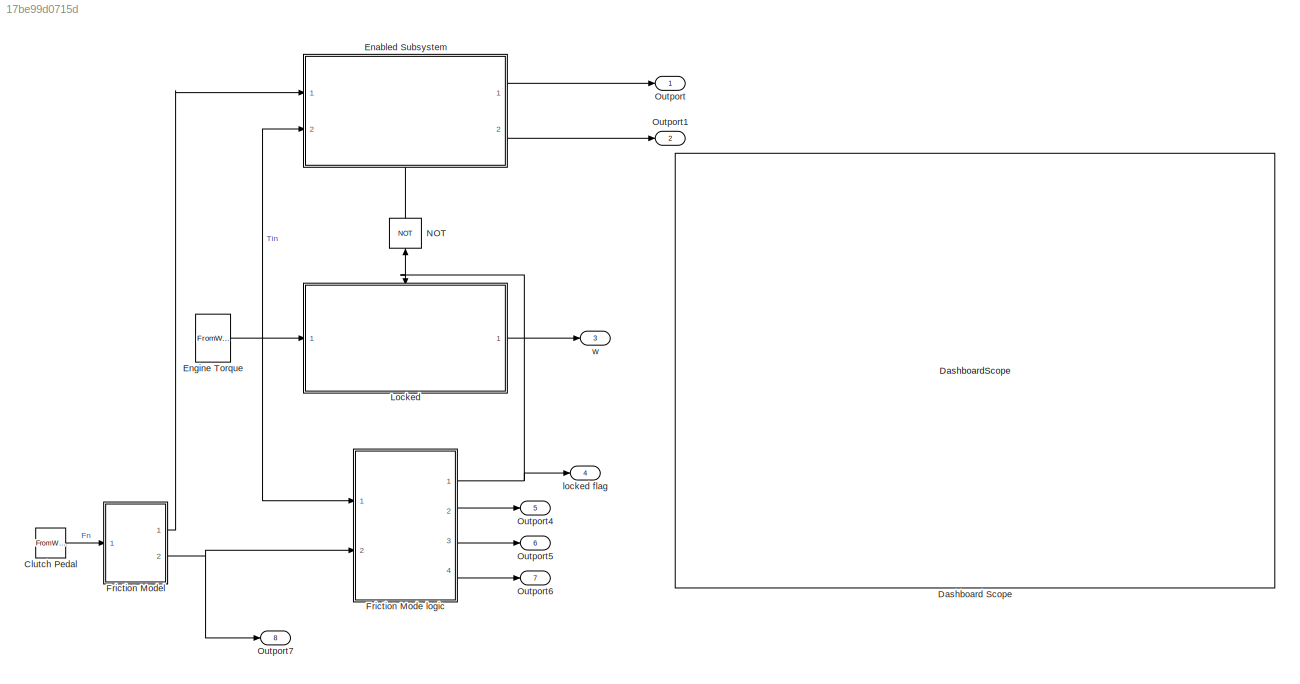
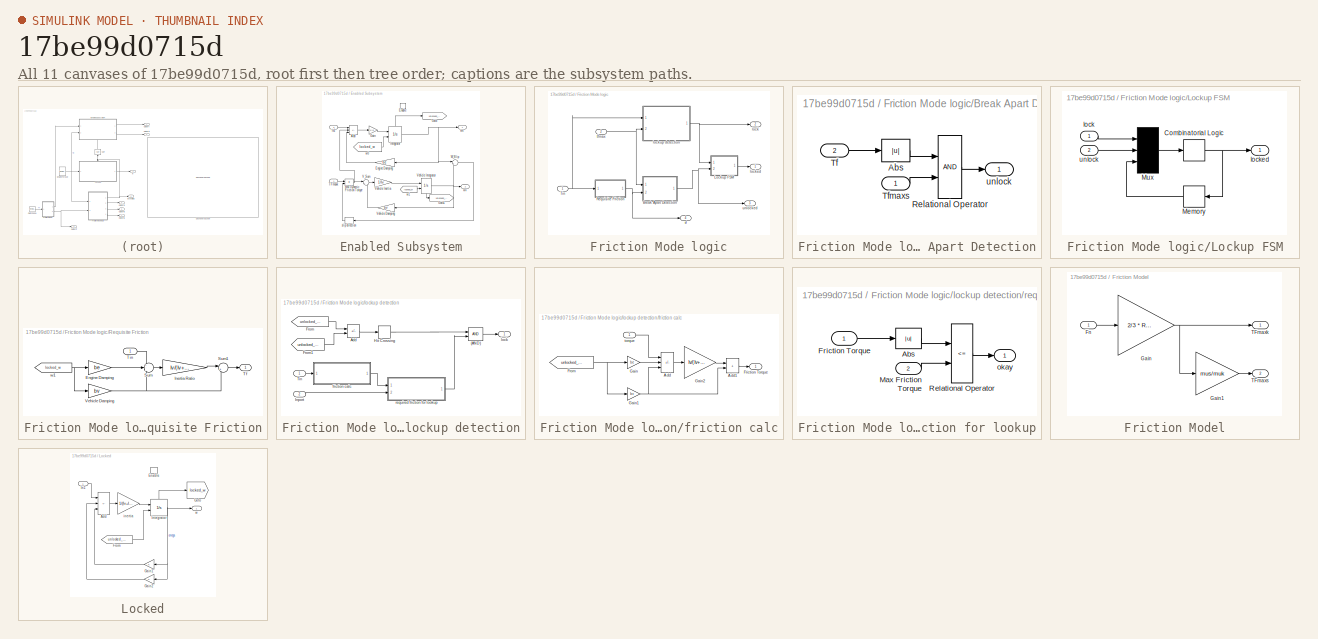
[diagram: thumbnail index - all 11 canvases of the model, root first then tree order]
MODEL slx_17be99d0715d
KIND model
CONFIG AbsTol = auto
CONFIG EnableMultiTasking = off
CONFIG FixedStep = auto
CONFIG MaxStep = auto
CONFIG MinStep = auto
CONFIG RelTol = 1e-3
CONFIG SampleTimeConstraint = Unconstrained
CONFIG Solver = VariableStepAuto
CONFIG SolverName = VariableStepAuto
CONFIG StartTime = 0.0
CONFIG StopTime = 10.0
WORKSPACE source: mxarray member
WORKSPACE Fn = [0 1 2 3 4 5 6 7 8 9 10 0 ... (22 elements, 11x2)]
WORKSPACE Ie = 1
WORKSPACE Iv = 5
WORKSPACE R = 1
WORKSPACE Tin = [1 2 3 4 5 6 7 8 9 10 2 2 ... (20 elements, 10x2)]
WORKSPACE be = 2
WORKSPACE bv = 1
WORKSPACE f1 = [1 6 11 16 21 26 31 36 41 46 51]
WORKSPACE muk = 1
WORKSPACE mus = 1.5
BLOCK [FromWorkspace] Clutch Pedal
  VariableName = Fn
  ZeroCross = off
BLOCK [DashboardScope] Dashboard Scope
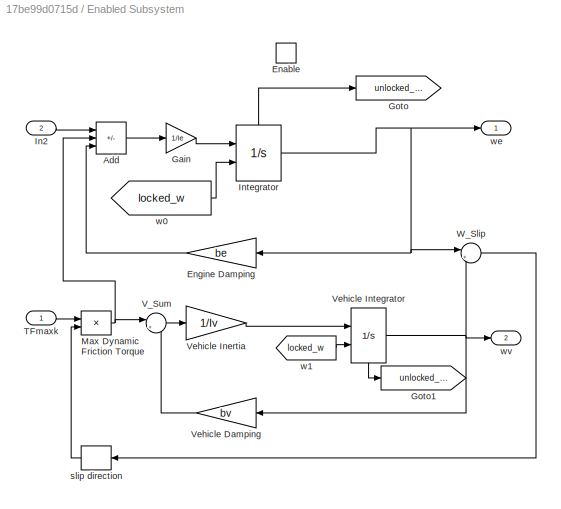
BLOCK [SubSystem] Enabled Subsystem
  NameLocation = top
  Ports = [2, 2, 1]
  RequestExecContextInheritance = off
  TreatAsAtomicUnit = on
BLOCK [Sum] Enabled Subsystem/Add
  IconShape = rectangular
  Inputs = +--
  Ports = [3, 1]
BLOCK [EnablePort] Enabled Subsystem/Enable
  Ports = []
  StatesWhenEnabling = reset
BLOCK [Gain] Enabled Subsystem/Engine Damping
  Gain = be
  OutDataTypeStr = Inherit: Same as input
  ParamDataTypeStr = Inherit: Same as input
  SaturateOnIntegerOverflow = on
BLOCK [Gain] Enabled Subsystem/Gain
  Gain = 1/Ie
BLOCK [Goto] Enabled Subsystem/Goto
  GotoTag = unlocked_we
  TagVisibility = global
BLOCK [Goto] Enabled Subsystem/Goto1
  GotoTag = unlocked_wv
  TagVisibility = global
BLOCK [Inport] Enabled Subsystem/In2
  Port = 2
BLOCK [Integrator] Enabled Subsystem/Integrator
  InitialConditionSource = external
  Ports = [2, 1, 0, 0, 1]
  ShowStatePort = on
BLOCK [Product] Enabled Subsystem/Max Dynamic Friction Torque
  InputSameDT = on
  OutDataTypeStr = Inherit: Same as first input
  Ports = [2, 1]
  RndMeth = Zero
  SaturateOnIntegerOverflow = on
BLOCK [Inport] Enabled Subsystem/TFmaxk
BLOCK [Sum] Enabled Subsystem/V_Sum
  InputSameDT = on
  Inputs = |+-
  NameLocation = top
  OutDataTypeStr = Inherit: Same as first input
  Ports = [2, 1]
  SaturateOnIntegerOverflow = on
BLOCK [Gain] Enabled Subsystem/Vehicle Damping
  Gain = bv
  OutDataTypeStr = Inherit: Same as input
  ParamDataTypeStr = Inherit: Same as input
  SaturateOnIntegerOverflow = on
BLOCK [Gain] Enabled Subsystem/Vehicle Inertia
  Gain = 1/Iv
  OutDataTypeStr = Inherit: Same as input
  ParamDataTypeStr = Inherit: Same as input
  SaturateOnIntegerOverflow = on
BLOCK [Integrator] Enabled Subsystem/Vehicle Integrator
  InitialConditionSource = external
  NameLocation = top
  Ports = [2, 1, 0, 0, 1]
  ShowStatePort = on
BLOCK [Sum] Enabled Subsystem/W_Slip
  InputSameDT = on
  Inputs = |+-
  NameLocation = top
  OutDataTypeStr = Inherit: Same as first input
  Ports = [2, 1]
  SaturateOnIntegerOverflow = on
BLOCK [Signum] Enabled Subsystem/slip direction
BLOCK [From] Enabled Subsystem/w0
  GotoTag = locked_w
  IconDisplay = Tag and signal name
  TagVisibility = global
BLOCK [From] Enabled Subsystem/w1
  GotoTag = locked_w
  TagVisibility = global
BLOCK [Outport] Enabled Subsystem/we
BLOCK [Outport] Enabled Subsystem/wv
  Port = 2
BLOCK [FromWorkspace] Engine Torque
  VariableName = Tin
  ZeroCross = off
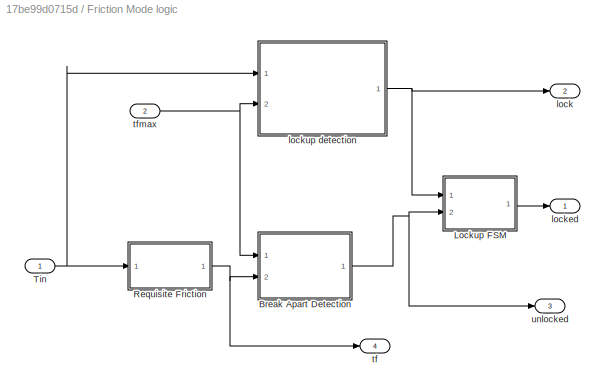
BLOCK [SubSystem] Friction Mode logic
  Ports = [2, 4]
  RequestExecContextInheritance = off
BLOCK [SubSystem] Friction Mode logic/Break Apart Detection
  Ports = [2, 1]
  RequestExecContextInheritance = off
BLOCK [Abs] Friction Mode logic/Break Apart Detection/Abs
BLOCK [RelationalOperator] Friction Mode logic/Break Apart Detection/Relational Operator
  OutDataTypeStr = boolean
  Ports = [2, 1]
BLOCK [Inport] Friction Mode logic/Break Apart Detection/Tf
  Port = 2
BLOCK [Inport] Friction Mode logic/Break Apart Detection/Tfmaxs
BLOCK [Outport] Friction Mode logic/Break Apart Detection/unlock
  InitialOutput = 0
  VectorParamsAs1DForOutWhenUnconnected = off
BLOCK [SubSystem] Friction Mode logic/Lockup FSM
  Ports = [2, 1]
  RequestExecContextInheritance = off
BLOCK [CombinatorialLogic] Friction Mode logic/Lockup FSM/Combinatorial Logic
  TruthTable = [0;1;0;0;1;1;1;0]
BLOCK [Memory] Friction Mode logic/Lockup FSM/Memory
BLOCK [Mux] Friction Mode logic/Lockup FSM/Mux
  Inputs = 3
  Ports = [3, 1]
BLOCK [Inport] Friction Mode logic/Lockup FSM/lock
  NameLocation = top
BLOCK [Outport] Friction Mode logic/Lockup FSM/locked
  InitialOutput = 0
  VectorParamsAs1DForOutWhenUnconnected = off
BLOCK [Inport] Friction Mode logic/Lockup FSM/unlock
  Port = 2
BLOCK [SubSystem] Friction Mode logic/Requisite Friction
  Ports = [1, 1]
  RequestExecContextInheritance = off
BLOCK [Gain] Friction Mode logic/Requisite Friction/Engine Damping
  Gain = be
  NameLocation = top
  OutDataTypeStr = Inherit: Same as input
  ParamDataTypeStr = Inherit: Same as input
  SaturateOnIntegerOverflow = on
BLOCK [Gain] Friction Mode logic/Requisite Friction/Inertia Ratio
  Gain = Iv/(Iv+Ie)
  OutDataTypeStr = Inherit: Same as input
  ParamDataTypeStr = Inherit: Same as input
  SaturateOnIntegerOverflow = on
BLOCK [Sum] Friction Mode logic/Requisite Friction/Sum
  InputSameDT = on
  Inputs = +--
  OutDataTypeStr = Inherit: Same as first input
  Ports = [3, 1]
  SaturateOnIntegerOverflow = on
BLOCK [Sum] Friction Mode logic/Requisite Friction/Sum1
  InputSameDT = on
  Inputs = |++
  OutDataTypeStr = Inherit: Same as first input
  Ports = [2, 1]
  SaturateOnIntegerOverflow = on
BLOCK [Outport] Friction Mode logic/Requisite Friction/Tf
  InitialOutput = 0
  VectorParamsAs1DForOutWhenUnconnected = off
BLOCK [Inport] Friction Mode logic/Requisite Friction/Tin
BLOCK [Gain] Friction Mode logic/Requisite Friction/Vehicle Damping
  Gain = bv
  OutDataTypeStr = Inherit: Same as input
  ParamDataTypeStr = Inherit: Same as input
  SaturateOnIntegerOverflow = on
BLOCK [From] Friction Mode logic/Requisite Friction/w1
  GotoTag = locked_w
  NameLocation = top
  TagVisibility = global
BLOCK [Inport] Friction Mode logic/Tin
BLOCK [Outport] Friction Mode logic/lock
  Port = 2
BLOCK [Outport] Friction Mode logic/locked
BLOCK [SubSystem] Friction Mode logic/lockup detection
  Ports = [2, 1]
  RequestExecContextInheritance = off
BLOCK [Logic] Friction Mode logic/lockup detection/(AND)
  AllPortsSameDT = off
  IconShape = distinctive
  OutDataTypeStr = boolean
  Ports = [2, 1]
BLOCK [Sum] Friction Mode logic/lockup detection/Add
  IconShape = rectangular
  Inputs = +-
  Ports = [2, 1]
BLOCK [From] Friction Mode logic/lockup detection/From
  GotoTag = unlocked_we
  TagVisibility = global
BLOCK [From] Friction Mode logic/lockup detection/From1
  GotoTag = unlocked_we
  IconDisplay = Signal name
  TagVisibility = global
BLOCK [HitCross] Friction Mode logic/lockup detection/Hit Crossing
  Ports = [1, 1]
BLOCK [Inport] Friction Mode logic/lockup detection/Inport
  Port = 2
BLOCK [Inport] Friction Mode logic/lockup detection/Tin
BLOCK [SubSystem] Friction Mode logic/lockup detection/friction calc
  Ports = [1, 1]
  RequestExecContextInheritance = off
BLOCK [Sum] Friction Mode logic/lockup detection/friction calc/Add
  IconShape = rectangular
  Inputs = +--
  Ports = [3, 1]
BLOCK [Sum] Friction Mode logic/lockup detection/friction calc/Add1
  IconShape = rectangular
  Ports = [2, 1]
BLOCK [Outport] Friction Mode logic/lockup detection/friction calc/Friction Torque
BLOCK [From] Friction Mode logic/lockup detection/friction calc/From
  GotoTag = unlocked_wv
  IconDisplay = Signal name
  TagVisibility = global
BLOCK [Gain] Friction Mode logic/lockup detection/friction calc/Gain
  Gain = be
BLOCK [Gain] Friction Mode logic/lockup detection/friction calc/Gain1
  Gain = bv
BLOCK [Gain] Friction Mode logic/lockup detection/friction calc/Gain2
  Gain = Iv/(Iv+Ie)
BLOCK [Inport] Friction Mode logic/lockup detection/friction calc/torque
BLOCK [Outport] Friction Mode logic/lockup detection/lock
BLOCK [SubSystem] Friction Mode logic/lockup detection/required friction for lookup
  Ports = [2, 1]
  RequestExecContextInheritance = off
BLOCK [Abs] Friction Mode logic/lockup detection/required friction for lookup/Abs
BLOCK [Inport] Friction Mode logic/lockup detection/required friction for lookup/Friction Torque
BLOCK [Inport] Friction Mode logic/lockup detection/required friction for lookup/Max Friction Torque
  Port = 2
BLOCK [RelationalOperator] Friction Mode logic/lockup detection/required friction for lookup/Relational Operator
  Operator = <=
  OutDataTypeStr = boolean
  Ports = [2, 1]
BLOCK [Outport] Friction Mode logic/lockup detection/required friction for lookup/okay
  InitialOutput = 0
  VectorParamsAs1DForOutWhenUnconnected = off
BLOCK [Outport] Friction Mode logic/tf
  Port = 4
BLOCK [Inport] Friction Mode logic/tfmax
  Port = 2
BLOCK [Outport] Friction Mode logic/unlocked
  Port = 3
BLOCK [SubSystem] Friction Model
  Ports = [1, 2]
  RequestExecContextInheritance = off
BLOCK [Inport] Friction Model/Fn
BLOCK [Gain] Friction Model/Gain
  Gain = 2/3 * R * muk
BLOCK [Gain] Friction Model/Gain1
  Gain = mus/muk
BLOCK [Outport] Friction Model/TFmaxk
BLOCK [Outport] Friction Model/TFmaxs
  Port = 2
BLOCK [SubSystem] Locked
  Ports = [1, 1, 1]
  RequestExecContextInheritance = off
  TreatAsAtomicUnit = on
BLOCK [Sum] Locked/Add
  IconShape = rectangular
  Inputs = +--
  Ports = [3, 1]
BLOCK [EnablePort] Locked/Enable
  Ports = []
  StatesWhenEnabling = reset
BLOCK [From] Locked/From
  GotoTag = unlocked_we
  IconDisplay = Signal name
  TagVisibility = global
BLOCK [Gain] Locked/Gain1
BLOCK [Gain] Locked/Gain2
BLOCK [Goto] Locked/Goto
  GotoTag = locked_w
  IconDisplay = Tag and signal name
  TagVisibility = global
BLOCK [Inport] Locked/In1
BLOCK [Integrator] Locked/Integrator
  InitialConditionSource = external
  Ports = [2, 1, 0, 0, 1]
  ShowStatePort = on
BLOCK [Gain] Locked/inertia
  Gain = 1/(Iv+Ie)
BLOCK [Outport] Locked/w
BLOCK [Logic] NOT
  AllPortsSameDT = off
  IconShape = distinctive
  NameLocation = right
  Operator = NOT
  OutDataTypeStr = boolean
  Ports = [1, 1]
BLOCK [Outport] Outport
BLOCK [Outport] Outport1
  Port = 2
BLOCK [Outport] Outport4
  Port = 5
  SignalName = lookup flag
BLOCK [Outport] Outport5
  Port = 6
  SignalName = break apart flag
BLOCK [Outport] Outport6
  Port = 7
BLOCK [Outport] Outport7
  Port = 8
BLOCK [Outport] locked flag
  Port = 4
BLOCK [Outport] w
  Port = 3
LINE Clutch Pedal:1 -> Friction Model:1
LINE Enabled Subsystem/Add:1 -> Enabled Subsystem/Gain:1
LINE Enabled Subsystem/Engine Damping:1 -> Enabled Subsystem/Add:3
LINE Enabled Subsystem/Gain:1 -> Enabled Subsystem/Integrator:1
LINE Enabled Subsystem/In2:1 -> Enabled Subsystem/Add:1
NET Enabled Subsystem/Integrator:1 -> Enabled Subsystem/Engine Damping:1, Enabled Subsystem/W_Slip:1, Enabled Subsystem/we:1
LINE Enabled Subsystem/Integrator:state -> Enabled Subsystem/Goto:1
NET Enabled Subsystem/Max Dynamic Friction Torque:1 -> Enabled Subsystem/Add:2, Enabled Subsystem/V_Sum:1
LINE Enabled Subsystem/TFmaxk:1 -> Enabled Subsystem/Max Dynamic Friction Torque:1
LINE Enabled Subsystem/V_Sum:1 -> Enabled Subsystem/Vehicle Inertia:1
LINE Enabled Subsystem/Vehicle Damping:1 -> Enabled Subsystem/V_Sum:2
LINE Enabled Subsystem/Vehicle Inertia:1 -> Enabled Subsystem/Vehicle Integrator:1
NET Enabled Subsystem/Vehicle Integrator:1 -> Enabled Subsystem/Vehicle Damping:1, Enabled Subsystem/W_Slip:2, Enabled Subsystem/wv:1
LINE Enabled Subsystem/Vehicle Integrator:state -> Enabled Subsystem/Goto1:1
LINE Enabled Subsystem/W_Slip:1 -> Enabled Subsystem/slip direction:1
LINE Enabled Subsystem/slip direction:1 -> Enabled Subsystem/Max Dynamic Friction Torque:2
LINE Enabled Subsystem/w0:1 -> Enabled Subsystem/Integrator:2
LINE Enabled Subsystem/w1:1 -> Enabled Subsystem/Vehicle Integrator:2
LINE Enabled Subsystem:1 -> Outport:1
LINE Enabled Subsystem:2 -> Outport1:1
NET Engine Torque:1 -> Enabled Subsystem:2, Friction Mode logic:1, Locked:1
LINE Friction Mode logic/Break Apart Detection/Abs:1 -> Friction Mode logic/Break Apart Detection/Relational Operator:1
LINE Friction Mode logic/Break Apart Detection/Relational Operator:1 -> Friction Mode logic/Break Apart Detection/unlock:1
LINE Friction Mode logic/Break Apart Detection/Tf:1 -> Friction Mode logic/Break Apart Detection/Abs:1
LINE Friction Mode logic/Break Apart Detection/Tfmaxs:1 -> Friction Mode logic/Break Apart Detection/Relational Operator:2
NET Friction Mode logic/Break Apart Detection:1 -> Friction Mode logic/Lockup FSM:2, Friction Mode logic/unlocked:1
NET Friction Mode logic/Lockup FSM/Combinatorial Logic:1 -> Friction Mode logic/Lockup FSM/Memory:1, Friction Mode logic/Lockup FSM/locked:1
LINE Friction Mode logic/Lockup FSM/Memory:1 -> Friction Mode logic/Lockup FSM/Mux:3
LINE Friction Mode logic/Lockup FSM/Mux:1 -> Friction Mode logic/Lockup FSM/Combinatorial Logic:1
LINE Friction Mode logic/Lockup FSM/lock:1 -> Friction Mode logic/Lockup FSM/Mux:1
LINE Friction Mode logic/Lockup FSM/unlock:1 -> Friction Mode logic/Lockup FSM/Mux:2
LINE Friction Mode logic/Lockup FSM:1 -> Friction Mode logic/locked:1
LINE Friction Mode logic/Requisite Friction/Engine Damping:1 -> Friction Mode logic/Requisite Friction/Sum:2
LINE Friction Mode logic/Requisite Friction/Inertia Ratio:1 -> Friction Mode logic/Requisite Friction/Sum1:1
LINE Friction Mode logic/Requisite Friction/Sum1:1 -> Friction Mode logic/Requisite Friction/Tf:1
LINE Friction Mode logic/Requisite Friction/Sum:1 -> Friction Mode logic/Requisite Friction/Inertia Ratio:1
LINE Friction Mode logic/Requisite Friction/Tin:1 -> Friction Mode logic/Requisite Friction/Sum:1
NET Friction Mode logic/Requisite Friction/Vehicle Damping:1 -> Friction Mode logic/Requisite Friction/Sum1:2, Friction Mode logic/Requisite Friction/Sum:3
NET Friction Mode logic/Requisite Friction/w1:1 -> Friction Mode logic/Requisite Friction/Engine Damping:1, Friction Mode logic/Requisite Friction/Vehicle Damping:1
NET Friction Mode logic/Requisite Friction:1 -> Friction Mode logic/Break Apart Detection:2, Friction Mode logic/tf:1
NET Friction Mode logic/Tin:1 -> Friction Mode logic/Requisite Friction:1, Friction Mode logic/lockup detection:1
LINE Friction Mode logic/lockup detection/(AND):1 -> Friction Mode logic/lockup detection/lock:1
LINE Friction Mode logic/lockup detection/Add:1 -> Friction Mode logic/lockup detection/Hit Crossing:1
LINE Friction Mode logic/lockup detection/From1:1 -> Friction Mode logic/lockup detection/Add:2
LINE Friction Mode logic/lockup detection/From:1 -> Friction Mode logic/lockup detection/Add:1
LINE Friction Mode logic/lockup detection/Hit Crossing:1 -> Friction Mode logic/lockup detection/(AND):1
LINE Friction Mode logic/lockup detection/Inport:1 -> Friction Mode logic/lockup detection/required friction for lookup:2
LINE Friction Mode logic/lockup detection/Tin:1 -> Friction Mode logic/lockup detection/friction calc:1
LINE Friction Mode logic/lockup detection/friction calc/Add1:1 -> Friction Mode logic/lockup detection/friction calc/Friction Torque:1
LINE Friction Mode logic/lockup detection/friction calc/Add:1 -> Friction Mode logic/lockup detection/friction calc/Gain2:1
NET Friction Mode logic/lockup detection/friction calc/From:1 -> Friction Mode logic/lockup detection/friction calc/Gain1:1, Friction Mode logic/lockup detection/friction calc/Gain:1
NET Friction Mode logic/lockup detection/friction calc/Gain1:1 -> Friction Mode logic/lockup detection/friction calc/Add1:2, Friction Mode logic/lockup detection/friction calc/Add:3
LINE Friction Mode logic/lockup detection/friction calc/Gain2:1 -> Friction Mode logic/lockup detection/friction calc/Add1:1
LINE Friction Mode logic/lockup detection/friction calc/Gain:1 -> Friction Mode logic/lockup detection/friction calc/Add:2
LINE Friction Mode logic/lockup detection/friction calc/torque:1 -> Friction Mode logic/lockup detection/friction calc/Add:1
LINE Friction Mode logic/lockup detection/friction calc:1 -> Friction Mode logic/lockup detection/required friction for lookup:1
LINE Friction Mode logic/lockup detection/required friction for lookup/Abs:1 -> Friction Mode logic/lockup detection/required friction for lookup/Relational Operator:1
LINE Friction Mode logic/lockup detection/required friction for lookup/Friction Torque:1 -> Friction Mode logic/lockup detection/required friction for lookup/Abs:1
LINE Friction Mode logic/lockup detection/required friction for lookup/Max Friction Torque:1 -> Friction Mode logic/lockup detection/required friction for lookup/Relational Operator:2
LINE Friction Mode logic/lockup detection/required friction for lookup/Relational Operator:1 -> Friction Mode logic/lockup detection/required friction for lookup/okay:1
LINE Friction Mode logic/lockup detection/required friction for lookup:1 -> Friction Mode logic/lockup detection/(AND):2
NET Friction Mode logic/lockup detection:1 -> Friction Mode logic/Lockup FSM:1, Friction Mode logic/lock:1
NET Friction Mode logic/tfmax:1 -> Friction Mode logic/Break Apart Detection:1, Friction Mode logic/lockup detection:2
NET Friction Mode logic:1 -> Locked:enable, NOT:1, locked flag:1
LINE Friction Mode logic:2 -> Outport4:1
LINE Friction Mode logic:3 -> Outport5:1
LINE Friction Mode logic:4 -> Outport6:1
LINE Friction Model/Fn:1 -> Friction Model/Gain:1
LINE Friction Model/Gain1:1 -> Friction Model/TFmaxs:1
NET Friction Model/Gain:1 -> Friction Model/Gain1:1, Friction Model/TFmaxk:1
LINE Friction Model:1 -> Enabled Subsystem:1
NET Friction Model:2 -> Friction Mode logic:2, Outport7:1
LINE Locked/Add:1 -> Locked/inertia:1
LINE Locked/From:1 -> Locked/Integrator:2
LINE Locked/Gain1:1 -> Locked/Add:3
LINE Locked/Gain2:1 -> Locked/Add:2
LINE Locked/In1:1 -> Locked/Add:1
NET Locked/Integrator:1 -> Locked/Gain1:1, Locked/Gain2:1, Locked/w:1
LINE Locked/Integrator:state -> Locked/Goto:1
LINE Locked/inertia:1 -> Locked/Integrator:1
LINE Locked:1 -> w:1
LINE NOT:1 -> Enabled Subsystem:enable
note: NET lines group one-source signal fan-out (src -> all destinations, sorted); 1:1 wires keep LINE
